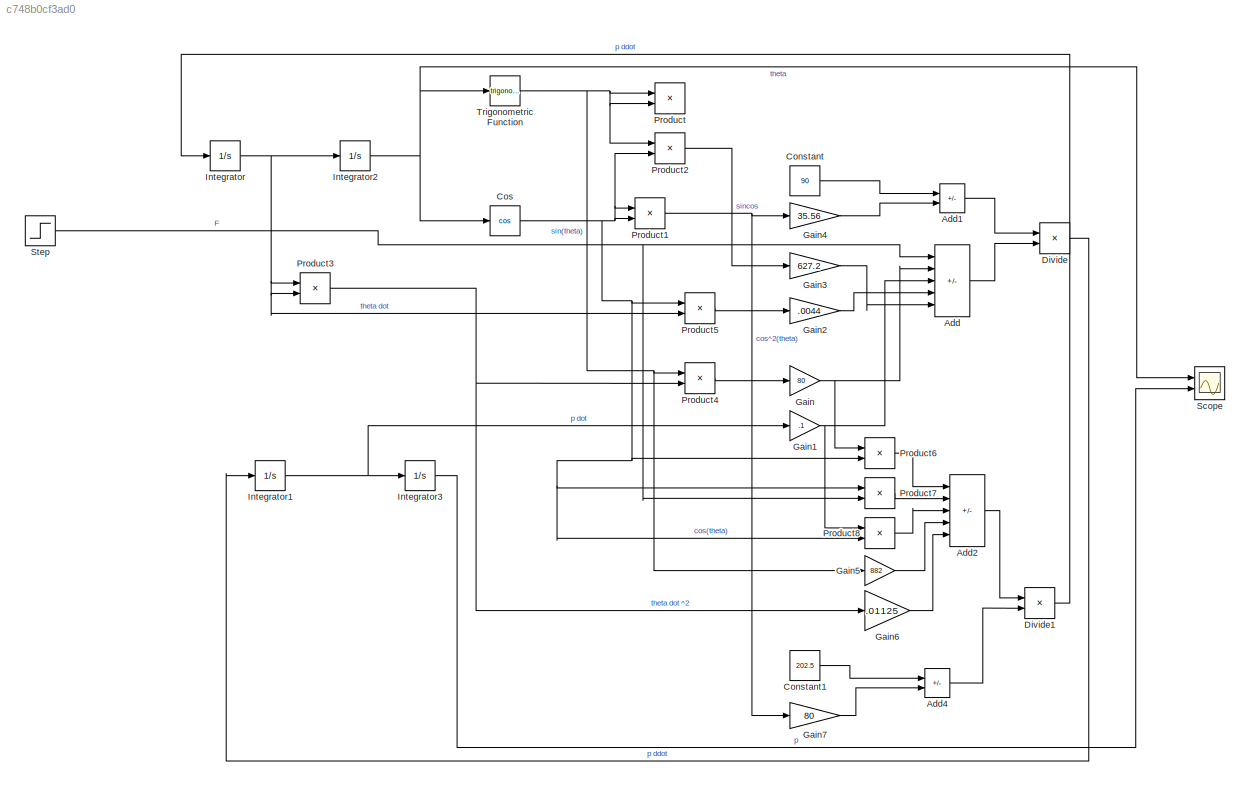
MODEL slx_c748b0cf3ad0
KIND model
CONFIG AbsTol = auto
CONFIG EnableMultiTasking = off
CONFIG FixedStep = auto
CONFIG MaxStep = auto
CONFIG MinStep = auto
CONFIG RelTol = 1e-3
CONFIG SampleTimeConstraint = Unconstrained
CONFIG Solver = VariableStepAuto
CONFIG SolverName = VariableStepAuto
CONFIG StartTime = 0.0
CONFIG StopTime = 10.0
BLOCK [Sum] Add
  IconShape = rectangular
  Inputs = ++--+
  Ports = [5, 1]
BLOCK [Sum] Add1
  IconShape = rectangular
  Inputs = +-
  Ports = [2, 1]
BLOCK [Sum] Add2
  IconShape = rectangular
  Inputs = ++-+-
  Ports = [5, 1]
BLOCK [Sum] Add4
  IconShape = rectangular
  Inputs = +-
  Ports = [2, 1]
BLOCK [Constant] Constant
  Value = 90
BLOCK [Constant] Constant1
  Value = 202.5
BLOCK [Trigonometry] Cos
  Operator = cos
  Ports = [1, 1]
BLOCK [Product] Divide
  Inputs = /*
  Ports = [2, 1]
BLOCK [Product] Divide1
  Inputs = */
  Ports = [2, 1]
BLOCK [Gain] Gain
  Gain = 80
BLOCK [Gain] Gain1
  Gain = .1
BLOCK [Gain] Gain2
  Gain = .0044
BLOCK [Gain] Gain3
  Gain = 627.2
BLOCK [Gain] Gain4
  Gain = 35.56
BLOCK [Gain] Gain5
  Gain = 882
BLOCK [Gain] Gain6
  Gain = .01125
BLOCK [Gain] Gain7
  Gain = 80
BLOCK [Integrator] Integrator
  Ports = [1, 1]
BLOCK [Integrator] Integrator1
  Ports = [1, 1]
BLOCK [Integrator] Integrator2
  Ports = [1, 1]
BLOCK [Integrator] Integrator3
  Ports = [1, 1]
BLOCK [Product] Product
  Ports = [2, 1]
BLOCK [Product] Product1
  Ports = [2, 1]
BLOCK [Product] Product2
  Ports = [2, 1]
BLOCK [Product] Product3
  Ports = [2, 1]
BLOCK [Product] Product4
  Ports = [2, 1]
BLOCK [Product] Product5
  Ports = [2, 1]
BLOCK [Product] Product6
  Ports = [2, 1]
BLOCK [Product] Product7
  Ports = [2, 1]
BLOCK [Product] Product8
  Ports = [2, 1]
BLOCK [Scope] Scope
  Floating = off
  NumInputPorts = 2
  Ports = [2]
  ScopeSpecificationString = Simulink.scopes.TimeScopeBlockCfg('CurrentConfiguration', extmgr.ConfigurationSet(extmgr.Configuration('Core','General UI',true),extmgr.Configuration('Core','Source UI',true),extmgr.Configuration('Sources','WiredSimulink',true),extmgr.Configuration('Visuals','Time Domain',true,'SerializedDisplays',{struct('MinYLimReal','-2.8384','MaxYLimReal','25.54561','YLabelReal','','MinYLimMag','0.00000','MaxY...<+1383ch>
BLOCK [Step] Step
  SampleTime = 0
BLOCK [Trigonometry] Trigonometric Function
  Ports = [1, 1]
LINE Add1:1 -> Divide:1
LINE Add2:1 -> Divide1:1
LINE Add4:1 -> Divide1:2
LINE Add:1 -> Divide:2
LINE Constant1:1 -> Add4:1
LINE Constant:1 -> Add1:1
NET Cos:1 -> Product1:1, Product1:2, Product2:2, Product5:1, Product6:2, Product7:1, Product8:2
LINE Divide1:1 -> Integrator:1
LINE Divide:1 -> Integrator1:1
NET Gain1:1 -> Add:3, Product8:1
LINE Gain2:1 -> Add:4
LINE Gain3:1 -> Add:5
LINE Gain4:1 -> Add1:2
LINE Gain5:1 -> Add2:4
LINE Gain6:1 -> Add2:5
LINE Gain7:1 -> Add4:2
NET Gain:1 -> Add:2, Product6:1
NET Integrator1:1 -> Gain1:1, Integrator3:1
NET Integrator2:1 -> Cos:1, Scope:1, Trigonometric Function:1
LINE Integrator3:1 -> Scope:2
NET Integrator:1 -> Integrator2:1, Product3:1, Product3:2, Product5:2
NET Product1:1 -> Gain4:1, Gain7:1
LINE Product2:1 -> Gain3:1
NET Product3:1 -> Gain6:1, Product4:2
LINE Product4:1 -> Gain:1
LINE Product5:1 -> Gain2:1
LINE Product6:1 -> Add2:1
LINE Product7:1 -> Add2:2
LINE Product8:1 -> Add2:3
NET Step:1 -> Add:1, Product7:2
NET Trigonometric Function:1 -> Gain5:1, Product2:1, Product4:1, Product:1, Product:2
note: NET lines group one-source signal fan-out (src -> all destinations, sorted); 1:1 wires keep LINE
